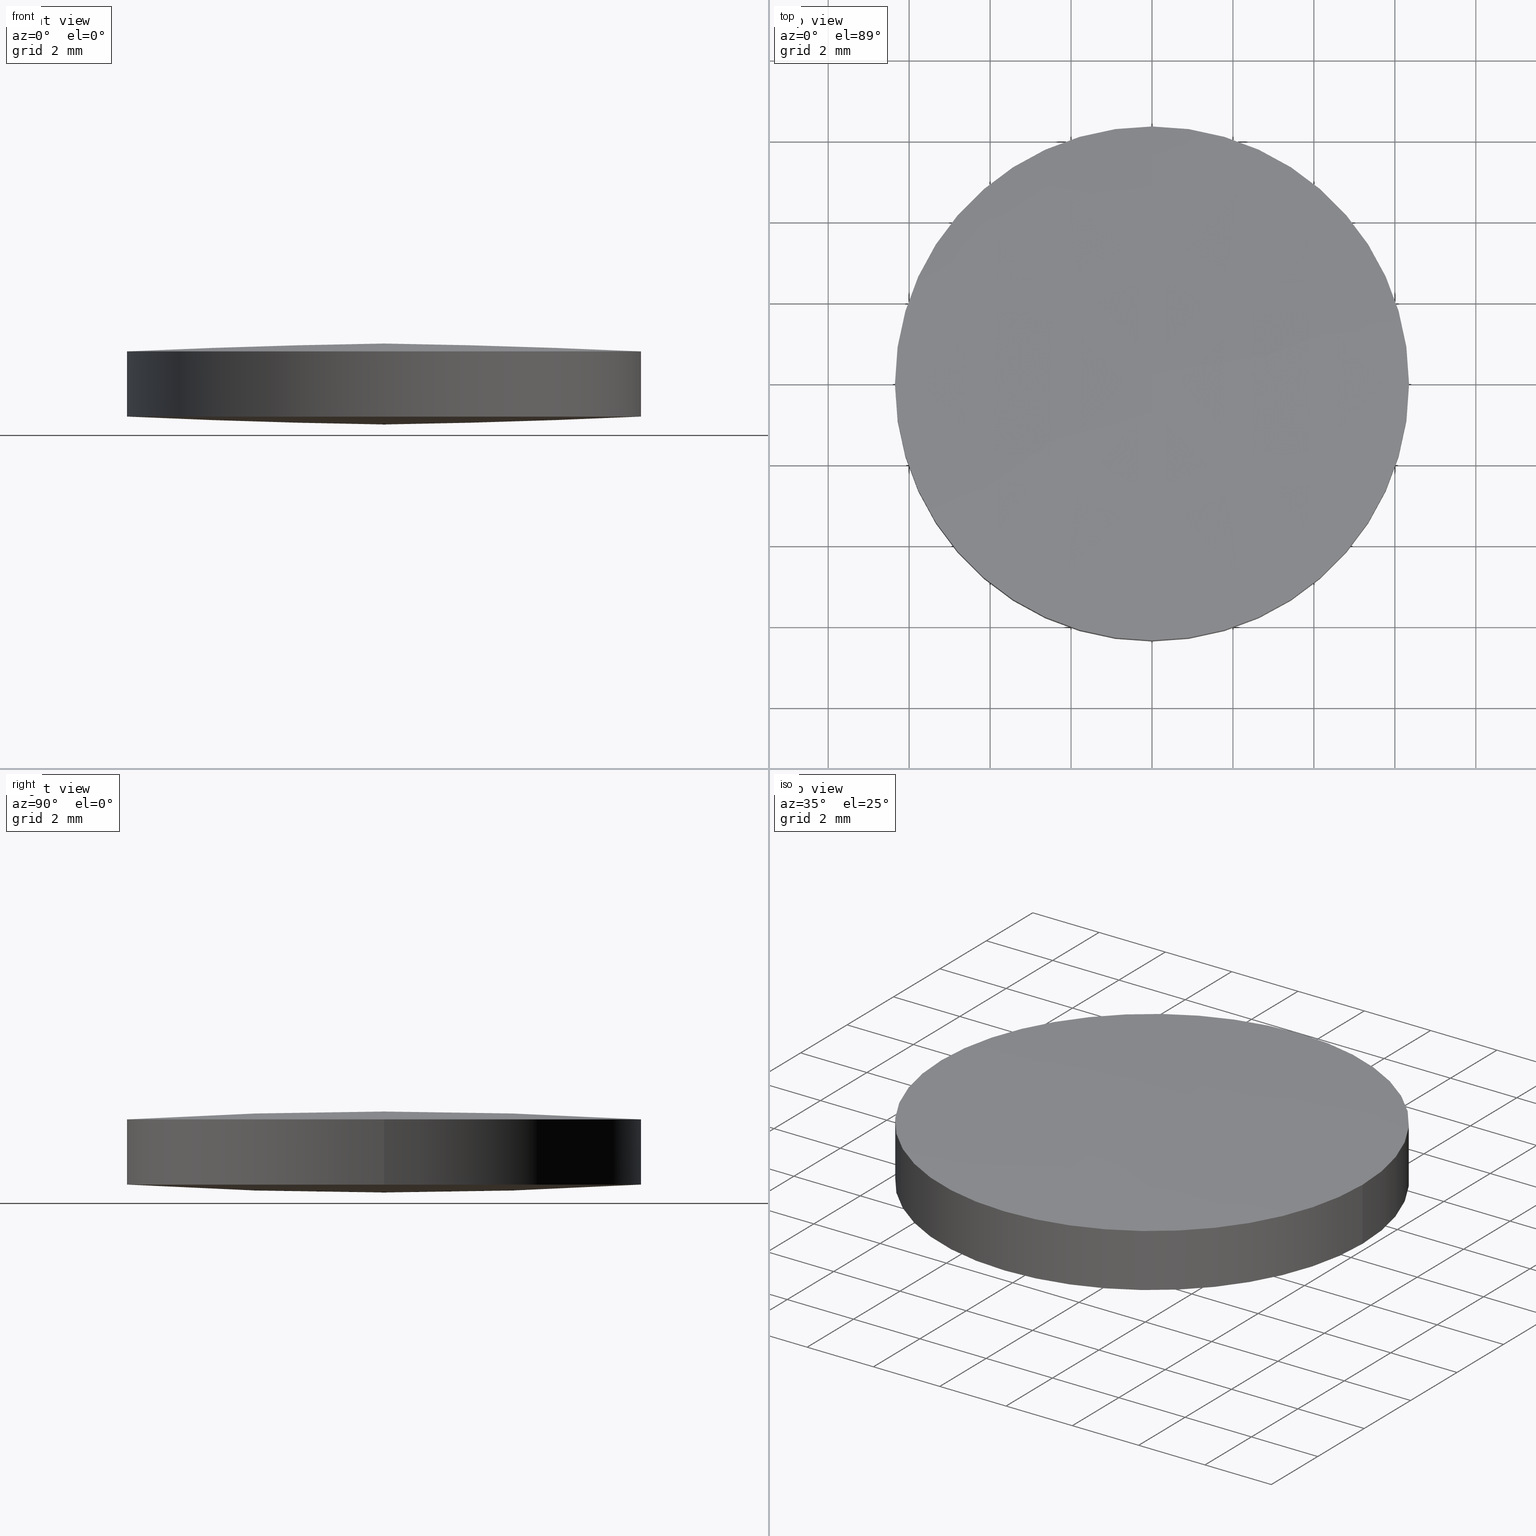
[diagram: canonical four-view strip — front | top / right | iso, engineering-drawing reading convention]
A machine part, canonical four-view strip (front | top / right | iso — engineering-drawing reading convention). The complete STEP part file that produces these views, byte-faithful:
ISO-10303-21;
HEADER;
FILE_DESCRIPTION (( 'STEP AP203' ),
    '1' );
FILE_NAME ('111-0124E BK7 bi-cx 12.7 F100.STEP',
    '2019-01-09T08:02:22',
    ( '' ),
    ( '' ),
    'SwSTEP 2.0',
    'SolidWorks 2017',
    '' );
FILE_SCHEMA (( 'CONFIG_CONTROL_DESIGN' ));
ENDSEC;

DATA;
#1 = AXIS2_PLACEMENT_3D ( 'NONE', #247, #229, #138 ) ;
#2 = CARTESIAN_POINT ( 'NONE',  ( 7.105427357601000300E-015, 7.105427357601000300E-015, 103.4000000000000100 ) ) ;
#3 = DIRECTION ( 'NONE',  ( -1.000000000000000000, 7.982089632700459600E-032, 2.840290826249820100E-016 ) ) ;
#4 = EDGE_CURVE ( 'NONE', #161, #175, #172, .T. ) ;
#5 = DIRECTION ( 'NONE',  ( 1.000000000000000000, 0.0000000000000000000, 0.0000000000000000000 ) ) ;
#6 = CARTESIAN_POINT ( 'NONE',  ( -2.220640865946257500E-014, -6.426102327413736300, 0.1998778640373566300 ) ) ;
#7 = AXIS2_PLACEMENT_3D ( 'NONE', #273, #230, #5 ) ;
#8 = CARTESIAN_POINT ( 'NONE',  ( -4.263824758279389100, 2.144798117303475600, -0.0008099461018445440600 ) ) ;
#9 = CARTESIAN_POINT ( 'NONE',  ( -2.132421672001572500, 2.144798117303475600, -0.06671192655137170300 ) ) ;
#10 = CALENDAR_DATE ( 2019, 9, 1 ) ;
#11 = MANIFOLD_SOLID_BREP ( 'Imported1', #167 ) ;
#12 = ORIENTED_EDGE ( 'NONE', *, *, #87, .F. ) ;
#13 = CARTESIAN_POINT ( 'NONE',  ( 2.228212791312067500E-014, 2.144798117303475600, 2.066711926551370900 ) ) ;
#14 = PRODUCT_DEFINITION_FORMATION_WITH_SPECIFIED_SOURCE ( 'ANY', '', #52, .NOT_KNOWN. ) ;
#15 = DIRECTION ( 'NONE',  ( 1.000000000000000000, 8.881784197001252300E-016, 0.0000000000000000000 ) ) ;
#16 = MECHANICAL_CONTEXT ( 'NONE', #53, 'mechanical' ) ;
#17 = EDGE_CURVE ( 'NONE', #152, #101, #275, .T. ) ;
#18 = DIRECTION ( 'NONE',  ( -0.0000000000000000000, -0.0000000000000000000, -1.000000000000000000 ) ) ;
#19 = UNCERTAINTY_MEASURE_WITH_UNIT (LENGTH_MEASURE( 1.000000000000000100E-005 ), #137, 'distance_accuracy_value', 'NONE');
#20 = CARTESIAN_POINT ( 'NONE',  ( -2.228212791312067500E-014, 2.144798117303475600, -0.06671192655136991300 ) ) ;
#21 = CC_DESIGN_PERSON_AND_ORGANIZATION_ASSIGNMENT ( #85, #181, ( #279 ) ) ;
#22 = CARTESIAN_POINT ( 'NONE',  ( 6.392173060473973900, 2.144798117303475600, 0.1309310565021202200 ) ) ;
#23 = CARTESIAN_POINT ( 'NONE',  ( 4.770489558936219500E-014, 2.144798117303475600, 2.066711926551373600 ) ) ;
#24 = ORIENTED_EDGE ( 'NONE', *, *, #239, .F. ) ;
#25 = DIRECTION ( 'NONE',  ( -0.0000000000000000000, -0.0000000000000000000, -1.000000000000000000 ) ) ;
#26 = DIRECTION ( 'NONE',  ( -0.0000000000000000000, -0.0000000000000000000, -1.000000000000000000 ) ) ;
#27 = CARTESIAN_POINT ( 'NONE',  ( -6.349999999999999600, 1.998896044546239400E-015, 0.1951672643184800000 ) ) ;
#28 = ORIENTED_EDGE ( 'NONE', *, *, #228, .T. ) ;
#29 = CARTESIAN_POINT ( 'NONE',  ( 2.220640865946257500E-014, -6.426102327413736300, 1.800122135962645100 ) ) ;
#30 = PRODUCT_DEFINITION ( 'UNKNOWN', '', #14, #108 ) ;
#31 = PERSON_AND_ORGANIZATION ( #32, #58 ) ;
#32 = PERSON ( 'UNSPECIFIED', 'UNSPECIFIED', 'UNSPECIFIED', ('UNSPECIFIED'), ('UNSPECIFIED'), ('UNSPECIFIED') ) ;
#33 = CARTESIAN_POINT ( 'NONE',  ( -4.252838692053341400, 6.426102327413745200, 0.2656100430614600200 ) ) ;
#34 = EDGE_CURVE ( 'NONE', #175, #208, #154, .T. ) ;
#35 = CIRCLE ( 'NONE', #198, 6.349999999999999600 ) ;
#36 = ORIENTED_EDGE ( 'NONE', *, *, #4, .T. ) ;
#37 = LOCAL_TIME ( 10, 2, 22.00000000000000000, #264 ) ;
#38 = CC_DESIGN_PERSON_AND_ORGANIZATION_ASSIGNMENT ( #31, #256, ( #30 ) ) ;
#39 = CIRCLE ( 'NONE', #143, 6.349999999999999600 ) ;
#40 = APPROVAL_PERSON_ORGANIZATION ( #99, #250, #289 ) ;
#41 = CARTESIAN_POINT ( 'NONE',  ( 2.498001805406600200E-016, 1.221245327087670000E-015, 1.804832735681519900 ) ) ;
#42 = ADVANCED_BREP_SHAPE_REPRESENTATION ( '111-0124E BK7 bi-cx 12.7 F100', ( #11, #225 ), #234 ) ;
#43 = ORIENTED_EDGE ( 'NONE', *, *, #4, .F. ) ;
#44 = DIRECTION ( 'NONE',  ( -0.0000000000000000000, -0.0000000000000000000, -1.000000000000000000 ) ) ;
#45 = EDGE_CURVE ( 'NONE', #133, #152, #98, .T. ) ;
#46 = ORIENTED_EDGE ( 'NONE', *, *, #17, .F. ) ;
#47 = PERSON_AND_ORGANIZATION ( #32, #58 ) ;
#48 = CARTESIAN_POINT ( 'NONE',  ( 2.498001805406600200E-016, 1.221245327087670000E-015, 1.804832735681519900 ) ) ;
#49 = APPROVAL_ROLE ( '' ) ;
#50 = AXIS2_PLACEMENT_3D ( 'NONE', #92, #116, #15 ) ;
#51 = ORIENTED_EDGE ( 'NONE', *, *, #83, .F. ) ;
#52 = PRODUCT ( '111-0124E BK7 bi-cx 12.7 F100', '111-0124E BK7 bi-cx 12.7 F100', '', ( #16 ) ) ;
#53 = APPLICATION_CONTEXT ( 'configuration controlled 3d designs of mechanical parts and assemblies' ) ;
#54 = CARTESIAN_POINT ( 'NONE',  ( 4.263824758279389100, -2.144798117303465400, 2.000809946101832700 ) ) ;
#55 = CC_DESIGN_APPROVAL ( #148, ( #279 ) ) ;
#56 = CARTESIAN_POINT ( 'NONE',  ( 2.220774660677933400E-014, -6.350000000000010300, 1.804832735681521000 ) ) ;
#57 = DIRECTION ( 'NONE',  ( 0.0000000000000000000, -1.000000000000000000, 2.684291645612080600E-016 ) ) ;
#58 = ORGANIZATION ( 'UNSPECIFIED', 'UNSPECIFIED', '' ) ;
#59 = CARTESIAN_POINT ( 'NONE',  ( 4.770489558936219500E-014, -6.426102327413736300, 1.800122135962647800 ) ) ;
#60 = CALENDAR_DATE ( 2019, 9, 1 ) ;
#61 = CARTESIAN_POINT ( 'NONE',  ( 2.498001805406600200E-016, 1.221245327087670000E-015, 0.1951672643184800000 ) ) ;
#62 = CARTESIAN_POINT ( 'NONE',  ( -2.132421672001572100, -2.144798117303465400, -0.06671192655135792200 ) ) ;
#63 = AXIS2_PLACEMENT_3D ( 'NONE', #156, #18, #158 ) ;
#64 = ORIENTED_EDGE ( 'NONE', *, *, #17, .T. ) ;
#65 = DATE_AND_TIME ( #202, #214 ) ;
#66 = VERTEX_POINT ( 'NONE', #96 ) ;
#67 = CARTESIAN_POINT ( 'NONE',  ( 2.132421672001516100, -2.144798117303465400, -0.06671192655135674300 ) ) ;
#68 = ADVANCED_FACE ( 'NONE', ( #191 ), #227, .T. ) ;
#69 = EDGE_CURVE ( 'NONE', #208, #161, #236, .T. ) ;
#70 = ORIENTED_EDGE ( 'NONE', *, *, #94, .F. ) ;
#71 = CIRCLE ( 'NONE', #1, 6.349999999999999600 ) ;
#72 = CARTESIAN_POINT ( 'NONE',  ( 2.132421672001572500, 2.144798117303475600, 2.066711926551373100 ) ) ;
#73 = ORIENTED_EDGE ( 'NONE', *, *, #69, .F. ) ;
#74 = COORDINATED_UNIVERSAL_TIME_OFFSET ( 2, 0, .AHEAD. ) ;
#75 = CARTESIAN_POINT ( 'NONE',  ( -2.220774660677933400E-014, 6.350000000000019200, 0.1951672643184799200 ) ) ;
#76 = DIRECTION ( 'NONE',  ( 1.000000000000000000, 0.0000000000000000000, 0.0000000000000000000 ) ) ;
#77 = DIRECTION ( 'NONE',  ( 0.0000000000000000000, 0.0000000000000000000, 1.000000000000000000 ) ) ;
#78 = CARTESIAN_POINT ( 'NONE',  ( 6.349999999999999600, 1.221245327087670000E-015, 1.804832735681519900 ) ) ;
#79 = CIRCLE ( 'NONE', #184, 6.349999999999999600 ) ;
#80 = DIRECTION ( 'NONE',  ( 1.000000000000000000, 0.0000000000000000000, 0.0000000000000000000 ) ) ;
#81 = VERTEX_POINT ( 'NONE', #267 ) ;
#82 = ORIENTED_EDGE ( 'NONE', *, *, #265, .T. ) ;
#83 = EDGE_CURVE ( 'NONE', #66, #175, #39, .T. ) ;
#84 = ADVANCED_FACE ( 'NONE', ( #174 ), #112, .T. ) ;
#85 = PERSON_AND_ORGANIZATION ( #32, #58 ) ;
#86 =( NAMED_UNIT ( * ) SI_UNIT ( $, .STERADIAN. ) SOLID_ANGLE_UNIT ( ) );
#87 = EDGE_CURVE ( 'NONE', #133, #101, #151, .T. ) ;
#88 = CARTESIAN_POINT ( 'NONE',  ( 2.228212791312067800E-014, -2.144798117303464900, 2.066711926551358000 ) ) ;
#89 = APPROVAL_STATUS ( 'not_yet_approved' ) ;
#90 = CARTESIAN_POINT ( 'NONE',  ( -4.252838692053300600, -6.426102327413735400, 1.734389956938523900 ) ) ;
#91 = EDGE_LOOP ( 'NONE', ( #46, #82, #123, #240, #70, #219 ) ) ;
#92 = CARTESIAN_POINT ( 'NONE',  ( 2.498001805406600200E-016, 1.221245327087670000E-015, 0.1951672643184800000 ) ) ;
#93 =( BOUNDED_SURFACE ( )  B_SPLINE_SURFACE ( 3, 3, ( 
 ( #293, #263, #292, #164 ),
 ( #215, #171, #62, #122 ),
 ( #271, #8, #9, #100 ),
 ( #254, #33, #217, #102 ) ),
 .UNSPECIFIED., .F., .F., .F. ) 
 B_SPLINE_SURFACE_WITH_KNOTS ( ( 4, 4 ),
 ( 4, 4 ),
 ( 0.0000000000000000000, 1.000000000000000000 ),
 ( 0.0000000000000000000, 1.000000000000000000 ),
 .UNSPECIFIED. ) 
 GEOMETRIC_REPRESENTATION_ITEM ( )  RATIONAL_B_SPLINE_SURFACE ( (
 ( 1.000000000000000000, 0.9996815558770323400, 0.9996815558770323400, 1.000000000000000000),
 ( 0.9987112968147171500, 0.9983932630717050600, 0.9983932630717050600, 0.9987112968147171500),
 ( 0.9987112968147171500, 0.9983932630717050600, 0.9983932630717050600, 0.9987112968147171500),
 ( 1.000000000000000000, 0.9996815558770323400, 0.9996815558770323400, 1.000000000000000000) ) ) 
 REPRESENTATION_ITEM ( '' )  SURFACE ( )  );
#94 = EDGE_CURVE ( 'NONE', #81, #208, #206, .T. ) ;
#95 = DIRECTION ( 'NONE',  ( 1.000000000000000000, 0.0000000000000000000, 0.0000000000000000000 ) ) ;
#96 = CARTESIAN_POINT ( 'NONE',  ( -6.349999999999999600, 1.998896044546239400E-015, 1.804832735681519900 ) ) ;
#97 = CC_DESIGN_SECURITY_CLASSIFICATION ( #279, ( #14 ) ) ;
#98 = CIRCLE ( 'NONE', #50, 6.349999999999999600 ) ;
#99 = PERSON_AND_ORGANIZATION ( #32, #58 ) ;
#100 = CARTESIAN_POINT ( 'NONE',  ( -4.770489558936219500E-014, 2.144798117303475600, -0.06671192655137282700 ) ) ;
#101 = VERTEX_POINT ( 'NONE', #75 ) ;
#102 = CARTESIAN_POINT ( 'NONE',  ( -4.683753385137379200E-014, 6.426102327413747000, 0.1998778640373398700 ) ) ;
#103 = LINE ( 'NONE', #226, #147 ) ;
#104 = CC_DESIGN_DATE_AND_TIME_ASSIGNMENT ( #235, #223, ( #279 ) ) ;
#105 = CYLINDRICAL_SURFACE ( 'NONE', #168, 6.349999999999999600 ) ;
#106 = ORIENTED_EDGE ( 'NONE', *, *, #69, .T. ) ;
#107 = APPROVAL_DATE_TIME ( #195, #148 ) ;
#108 = DESIGN_CONTEXT ( 'detailed design', #221, 'design' ) ;
#109 = PERSON_AND_ORGANIZATION ( #32, #58 ) ;
#110 = ORIENTED_EDGE ( 'NONE', *, *, #94, .T. ) ;
#111 = AXIS2_PLACEMENT_3D ( 'NONE', #2, #166, #269 ) ;
#112 =( BOUNDED_SURFACE ( )  B_SPLINE_SURFACE ( 3, 3, ( 
 ( #291, #160, #266, #59 ),
 ( #139, #54, #252, #213 ),
 ( #210, #189, #72, #23 ),
 ( #211, #248, #207, #141 ) ),
 .UNSPECIFIED., .F., .F., .F. ) 
 B_SPLINE_SURFACE_WITH_KNOTS ( ( 4, 4 ),
 ( 4, 4 ),
 ( 0.0000000000000000000, 1.000000000000000000 ),
 ( 0.0000000000000000000, 1.000000000000000000 ),
 .UNSPECIFIED. ) 
 GEOMETRIC_REPRESENTATION_ITEM ( )  RATIONAL_B_SPLINE_SURFACE ( (
 ( 1.000000000000000000, 0.9996815558770323400, 0.9996815558770323400, 1.000000000000000000),
 ( 0.9987112968147171500, 0.9983932630717050600, 0.9983932630717050600, 0.9987112968147171500),
 ( 0.9987112968147171500, 0.9983932630717050600, 0.9983932630717050600, 0.9987112968147171500),
 ( 1.000000000000000000, 0.9996815558770323400, 0.9996815558770323400, 1.000000000000000000) ) ) 
 REPRESENTATION_ITEM ( '' )  SURFACE ( )  );
#113 = PRODUCT_RELATED_PRODUCT_CATEGORY ( 'detail', '', ( #52 ) ) ;
#114 = SHAPE_DEFINITION_REPRESENTATION ( #140, #42 ) ;
#115 = CARTESIAN_POINT ( 'NONE',  ( 2.126927326657003900, 6.426102327413745200, 0.1998778640373421700 ) ) ;
#116 = DIRECTION ( 'NONE',  ( -0.0000000000000000000, -0.0000000000000000000, -1.000000000000000000 ) ) ;
#117 = ORIENTED_EDGE ( 'NONE', *, *, #124, .T. ) ;
#118 = APPROVAL_PERSON_ORGANIZATION ( #47, #238, #260 ) ;
#119 = CARTESIAN_POINT ( 'NONE',  ( 6.392173060473973000, -2.144798117303464900, 0.1309310565021339400 ) ) ;
#120 = DIRECTION ( 'NONE',  ( -0.0000000000000000000, -0.0000000000000000000, -1.000000000000000000 ) ) ;
#121 = CC_DESIGN_PERSON_AND_ORGANIZATION_ASSIGNMENT ( #109, #205, ( #52 ) ) ;
#122 = CARTESIAN_POINT ( 'NONE',  ( -4.770489558936219500E-014, -2.144798117303464900, -0.06671192655135904600 ) ) ;
#123 = ORIENTED_EDGE ( 'NONE', *, *, #83, .T. ) ;
#124 = EDGE_CURVE ( 'NONE', #101, #81, #71, .T. ) ;
#125 = DIRECTION ( 'NONE',  ( -0.0000000000000000000, -0.0000000000000000000, -1.000000000000000000 ) ) ;
#126 = VECTOR ( 'NONE', #188, 1000.000000000000000 ) ;
#127 = CARTESIAN_POINT ( 'NONE',  ( 6.375703144248083400, -6.426102327413736300, 0.3970116050314203000 ) ) ;
#128 = EDGE_LOOP ( 'NONE', ( #24, #36, #51 ) ) ;
#129 = CC_DESIGN_APPROVAL ( #250, ( #30 ) ) ;
#130 = PERSON_AND_ORGANIZATION_ROLE ( 'creator' ) ;
#131 = CARTESIAN_POINT ( 'NONE',  ( -2.220640865946257500E-014, 6.426102327413747000, 0.1998778640373427600 ) ) ;
#132 = CARTESIAN_POINT ( 'NONE',  ( -4.263824758279350900, 2.144798117303475600, 2.000809946101842000 ) ) ;
#133 = VERTEX_POINT ( 'NONE', #163 ) ;
#134 = CC_DESIGN_PERSON_AND_ORGANIZATION_ASSIGNMENT ( #280, #130, ( #14 ) ) ;
#135 = CALENDAR_DATE ( 2019, 9, 1 ) ;
#136 = CARTESIAN_POINT ( 'NONE',  ( 6.349999999999999600, 1.221245327087670000E-015, 0.1951672643184800000 ) ) ;
#137 =( LENGTH_UNIT ( ) NAMED_UNIT ( * ) SI_UNIT ( .MILLI., .METRE. ) );
#138 = DIRECTION ( 'NONE',  ( 1.000000000000000000, 0.0000000000000000000, 0.0000000000000000000 ) ) ;
#139 = CARTESIAN_POINT ( 'NONE',  ( 6.392173060473999700, -2.144798117303464900, 1.869068943497871600 ) ) ;
#140 = PRODUCT_DEFINITION_SHAPE ( 'NONE', 'NONE',  #30 ) ;
#141 = CARTESIAN_POINT ( 'NONE',  ( 4.770489558936219500E-014, 6.426102327413747000, 1.800122135962661600 ) ) ;
#142 = DATE_AND_TIME ( #135, #192 ) ;
#143 = AXIS2_PLACEMENT_3D ( 'NONE', #48, #25, #95 ) ;
#144 = CARTESIAN_POINT ( 'NONE',  ( 2.498001805406600200E-016, 1.221245327087670000E-015, 0.1951672643184800000 ) ) ;
#145 = EDGE_LOOP ( 'NONE', ( #28, #268, #117 ) ) ;
#146 = PERSON_AND_ORGANIZATION ( #32, #58 ) ;
#147 = VECTOR ( 'NONE', #224, 1000.000000000000000 ) ;
#148 = APPROVAL ( #89, 'UNSPECIFIED' ) ;
#149 = ORIENTED_EDGE ( 'NONE', *, *, #45, .F. ) ;
#150 = APPROVAL_DATE_TIME ( #65, #250 ) ;
#151 = CIRCLE ( 'NONE', #111, 103.4000000000000100 ) ;
#152 = VERTEX_POINT ( 'NONE', #27 ) ;
#153 = ADVANCED_FACE ( 'NONE', ( #294 ), #93, .T. ) ;
#154 = CIRCLE ( 'NONE', #281, 6.349999999999999600 ) ;
#155 = DIRECTION ( 'NONE',  ( 1.000000000000000000, 0.0000000000000000000, 0.0000000000000000000 ) ) ;
#156 = CARTESIAN_POINT ( 'NONE',  ( 2.498001805406600200E-016, 1.221245327087670000E-015, 1.804832735681519900 ) ) ;
#157 =( NAMED_UNIT ( * ) PLANE_ANGLE_UNIT ( ) SI_UNIT ( $, .RADIAN. ) );
#158 = DIRECTION ( 'NONE',  ( 1.000000000000000000, 0.0000000000000000000, 0.0000000000000000000 ) ) ;
#159 = APPROVAL_STATUS ( 'not_yet_approved' ) ;
#160 = CARTESIAN_POINT ( 'NONE',  ( 4.252838692053340500, -6.426102327413735400, 1.734389956938527500 ) ) ;
#161 = VERTEX_POINT ( 'NONE', #56 ) ;
#162 = CARTESIAN_POINT ( 'NONE',  ( 4.263824758279350000, 2.144798117303475600, -0.0008099461018408037800 ) ) ;
#163 = CARTESIAN_POINT ( 'NONE',  ( -2.220774660677933400E-014, -6.350000000000010300, 0.1951672643184799200 ) ) ;
#164 = CARTESIAN_POINT ( 'NONE',  ( -4.683753385137379200E-014, -6.426102327413736300, 0.1998778640373537500 ) ) ;
#165 = CC_DESIGN_APPROVAL ( #238, ( #14 ) ) ;
#166 = DIRECTION ( 'NONE',  ( 1.000000000000000000, 7.982089632700459600E-032, -2.840290826249820100E-016 ) ) ;
#167 = CLOSED_SHELL ( 'NONE', ( #255, #68, #193, #153, #180, #84 ) ) ;
#168 = AXIS2_PLACEMENT_3D ( 'NONE', #144, #77, #170 ) ;
#169 = CARTESIAN_POINT ( 'NONE',  ( 2.126927326657003500, -6.426102327413735400, 0.1998778640373560500 ) ) ;
#170 = DIRECTION ( 'NONE',  ( 1.000000000000000000, 0.0000000000000000000, 0.0000000000000000000 ) ) ;
#171 = CARTESIAN_POINT ( 'NONE',  ( -4.263824758279389100, -2.144798117303465400, -0.0008099461018308020100 ) ) ;
#172 = CIRCLE ( 'NONE', #290, 103.4000000000000100 ) ;
#173 = CC_DESIGN_PERSON_AND_ORGANIZATION_ASSIGNMENT ( #146, #186, ( #14 ) ) ;
#174 = FACE_OUTER_BOUND ( 'NONE', #222, .T. ) ;
#175 = VERTEX_POINT ( 'NONE', #231 ) ;
#176 =( BOUNDED_SURFACE ( )  B_SPLINE_SURFACE ( 3, 3, ( 
 ( #6, #169, #276, #127 ),
 ( #277, #67, #187, #119 ),
 ( #20, #203, #162, #22 ),
 ( #131, #115, #285, #261 ) ),
 .UNSPECIFIED., .F., .F., .F. ) 
 B_SPLINE_SURFACE_WITH_KNOTS ( ( 4, 4 ),
 ( 4, 4 ),
 ( 0.0000000000000000000, 1.000000000000000000 ),
 ( 0.0000000000000000000, 1.000000000000000000 ),
 .UNSPECIFIED. ) 
 GEOMETRIC_REPRESENTATION_ITEM ( )  RATIONAL_B_SPLINE_SURFACE ( (
 ( 1.000000000000000000, 0.9996815558770323400, 0.9996815558770323400, 1.000000000000000000),
 ( 0.9987112968147171500, 0.9983932630717050600, 0.9983932630717050600, 0.9987112968147171500),
 ( 0.9987112968147171500, 0.9983932630717050600, 0.9983932630717050600, 0.9987112968147171500),
 ( 1.000000000000000000, 0.9996815558770323400, 0.9996815558770323400, 1.000000000000000000) ) ) 
 REPRESENTATION_ITEM ( '' )  SURFACE ( )  );
#177 = FACE_OUTER_BOUND ( 'NONE', #91, .T. ) ;
#178 = PERSON_AND_ORGANIZATION ( #32, #58 ) ;
#179 = CARTESIAN_POINT ( 'NONE',  ( -6.392173060473974800, 2.144798117303475600, 1.869068943497881800 ) ) ;
#180 = ADVANCED_FACE ( 'NONE', ( #232 ), #233, .T. ) ;
#181 = PERSON_AND_ORGANIZATION_ROLE ( 'classification_officer' ) ;
#182 = CARTESIAN_POINT ( 'NONE',  ( 2.220640865946257500E-014, 6.426102327413747000, 1.800122135962658900 ) ) ;
#183 = ORIENTED_EDGE ( 'NONE', *, *, #228, .F. ) ;
#184 = AXIS2_PLACEMENT_3D ( 'NONE', #61, #125, #270 ) ;
#185 = CALENDAR_DATE ( 2019, 9, 1 ) ;
#186 = PERSON_AND_ORGANIZATION_ROLE ( 'design_supplier' ) ;
#187 = CARTESIAN_POINT ( 'NONE',  ( 4.263824758279349100, -2.144798117303465400, -0.0008099461018270615100 ) ) ;
#188 = DIRECTION ( 'NONE',  ( 0.0000000000000000000, 0.0000000000000000000, 1.000000000000000000 ) ) ;
#189 = CARTESIAN_POINT ( 'NONE',  ( 4.263824758279389100, 2.144798117303475600, 2.000809946101845600 ) ) ;
#190 = DIRECTION ( 'NONE',  ( 1.000000000000000000, 0.0000000000000000000, 0.0000000000000000000 ) ) ;
#191 = FACE_OUTER_BOUND ( 'NONE', #128, .T. ) ;
#192 = LOCAL_TIME ( 10, 2, 22.00000000000000000, #253 ) ;
#193 = ADVANCED_FACE ( 'NONE', ( #177 ), #105, .T. ) ;
#194 = FACE_OUTER_BOUND ( 'NONE', #145, .T. ) ;
#195 = DATE_AND_TIME ( #185, #37 ) ;
#196 = LOCAL_TIME ( 10, 2, 22.00000000000000000, #74 ) ;
#197 = APPROVAL_STATUS ( 'not_yet_approved' ) ;
#198 = AXIS2_PLACEMENT_3D ( 'NONE', #41, #44, #80 ) ;
#199 = ORIENTED_EDGE ( 'NONE', *, *, #45, .T. ) ;
#200 = APPLICATION_PROTOCOL_DEFINITION ( 'international standard', 'config_control_design', 1994, #53 ) ;
#201 = CARTESIAN_POINT ( 'NONE',  ( -4.263824758279350900, -2.144798117303465400, 2.000809946101829200 ) ) ;
#202 = CALENDAR_DATE ( 2019, 9, 1 ) ;
#203 = CARTESIAN_POINT ( 'NONE',  ( 2.132421672001516600, 2.144798117303475600, -0.06671192655137053700 ) ) ;
#204 = DATE_TIME_ROLE ( 'creation_date' ) ;
#205 = PERSON_AND_ORGANIZATION_ROLE ( 'design_owner' ) ;
#206 = LINE ( 'NONE', #136, #126 ) ;
#207 = CARTESIAN_POINT ( 'NONE',  ( 2.126927326657059400, 6.426102327413745200, 1.800122135962660700 ) ) ;
#208 = VERTEX_POINT ( 'NONE', #78 ) ;
#209 = COORDINATED_UNIVERSAL_TIME_OFFSET ( 2, 0, .AHEAD. ) ;
#210 = CARTESIAN_POINT ( 'NONE',  ( 6.392173060474000600, 2.144798117303475600, 1.869068943497885300 ) ) ;
#211 = CARTESIAN_POINT ( 'NONE',  ( 6.375703144248110900, 6.426102327413747000, 1.602988394968599000 ) ) ;
#212 = CARTESIAN_POINT ( 'NONE',  ( 2.498001805406600200E-016, 1.221245327087670000E-015, 1.804832735681519900 ) ) ;
#213 = CARTESIAN_POINT ( 'NONE',  ( 4.770489558936219500E-014, -2.144798117303464900, 2.066711926551361200 ) ) ;
#214 = LOCAL_TIME ( 10, 2, 22.00000000000000000, #259 ) ;
#215 = CARTESIAN_POINT ( 'NONE',  ( -6.392173060473999700, -2.144798117303464900, 0.1309310565021301100 ) ) ;
#216 = DATE_AND_TIME ( #60, #220 ) ;
#217 = CARTESIAN_POINT ( 'NONE',  ( -2.126927326657058500, 6.426102327413745200, 0.1998778640373409800 ) ) ;
#218 = AXIS2_PLACEMENT_3D ( 'NONE', #295, #26, #76 ) ;
#219 = ORIENTED_EDGE ( 'NONE', *, *, #124, .F. ) ;
#220 = LOCAL_TIME ( 10, 2, 22.00000000000000000, #209 ) ;
#221 = APPLICATION_CONTEXT ( 'configuration controlled 3d designs of mechanical parts and assemblies' ) ;
#222 = EDGE_LOOP ( 'NONE', ( #43, #73, #288 ) ) ;
#223 = DATE_TIME_ROLE ( 'classification_date' ) ;
#224 = DIRECTION ( 'NONE',  ( 0.0000000000000000000, 0.0000000000000000000, 1.000000000000000000 ) ) ;
#225 = AXIS2_PLACEMENT_3D ( 'NONE', #258, #283, #155 ) ;
#226 = CARTESIAN_POINT ( 'NONE',  ( -6.349999999999999600, 1.998896044546239400E-015, 0.1951672643184800000 ) ) ;
#227 =( BOUNDED_SURFACE ( )  B_SPLINE_SURFACE ( 3, 3, ( 
 ( #29, #257, #90, #241 ),
 ( #88, #243, #201, #245 ),
 ( #13, #286, #132, #179 ),
 ( #182, #284, #262, #242 ) ),
 .UNSPECIFIED., .F., .F., .F. ) 
 B_SPLINE_SURFACE_WITH_KNOTS ( ( 4, 4 ),
 ( 4, 4 ),
 ( 0.0000000000000000000, 1.000000000000000000 ),
 ( 0.0000000000000000000, 1.000000000000000000 ),
 .UNSPECIFIED. ) 
 GEOMETRIC_REPRESENTATION_ITEM ( )  RATIONAL_B_SPLINE_SURFACE ( (
 ( 1.000000000000000000, 0.9996815558770323400, 0.9996815558770323400, 1.000000000000000000),
 ( 0.9987112968147171500, 0.9983932630717050600, 0.9983932630717050600, 0.9987112968147171500),
 ( 0.9987112968147171500, 0.9983932630717050600, 0.9983932630717050600, 0.9987112968147171500),
 ( 1.000000000000000000, 0.9996815558770323400, 0.9996815558770323400, 1.000000000000000000) ) ) 
 REPRESENTATION_ITEM ( '' )  SURFACE ( )  );
#228 = EDGE_CURVE ( 'NONE', #81, #133, #79, .T. ) ;
#229 = DIRECTION ( 'NONE',  ( -0.0000000000000000000, -0.0000000000000000000, -1.000000000000000000 ) ) ;
#230 = DIRECTION ( 'NONE',  ( 0.0000000000000000000, 0.0000000000000000000, 1.000000000000000000 ) ) ;
#231 = CARTESIAN_POINT ( 'NONE',  ( 2.220774660677933400E-014, 6.350000000000019200, 1.804832735681521000 ) ) ;
#232 = FACE_OUTER_BOUND ( 'NONE', #272, .T. ) ;
#233 = CYLINDRICAL_SURFACE ( 'NONE', #7, 6.349999999999999600 ) ;
#234 =( GEOMETRIC_REPRESENTATION_CONTEXT ( 3 ) GLOBAL_UNCERTAINTY_ASSIGNED_CONTEXT ( ( #19 ) ) GLOBAL_UNIT_ASSIGNED_CONTEXT ( ( #137, #157, #86 ) ) REPRESENTATION_CONTEXT ( 'NONE', 'WORKASPACE' ) );
#235 = DATE_AND_TIME ( #10, #196 ) ;
#236 = CIRCLE ( 'NONE', #63, 6.349999999999999600 ) ;
#237 = EDGE_LOOP ( 'NONE', ( #12, #199, #64 ) ) ;
#238 = APPROVAL ( #159, 'UNSPECIFIED' ) ;
#239 = EDGE_CURVE ( 'NONE', #161, #66, #35, .T. ) ;
#240 = ORIENTED_EDGE ( 'NONE', *, *, #34, .T. ) ;
#241 = CARTESIAN_POINT ( 'NONE',  ( -6.375703144248084300, -6.426102327413736300, 1.602988394968581300 ) ) ;
#242 = CARTESIAN_POINT ( 'NONE',  ( -6.375703144248085200, 6.426102327413747000, 1.602988394968595200 ) ) ;
#243 = CARTESIAN_POINT ( 'NONE',  ( -2.132421672001516100, -2.144798117303465400, 2.066711926551358500 ) ) ;
#244 = APPROVAL_PERSON_ORGANIZATION ( #178, #148, #49 ) ;
#245 = CARTESIAN_POINT ( 'NONE',  ( -6.392173060473973900, -2.144798117303464900, 1.869068943497867600 ) ) ;
#246 = APPLICATION_PROTOCOL_DEFINITION ( 'international standard', 'config_control_design', 1994, #221 ) ;
#247 = CARTESIAN_POINT ( 'NONE',  ( 2.498001805406600200E-016, 1.221245327087670000E-015, 0.1951672643184800000 ) ) ;
#248 = CARTESIAN_POINT ( 'NONE',  ( 4.252838692053341400, 6.426102327413745200, 1.734389956938541700 ) ) ;
#249 = APPROVAL_DATE_TIME ( #216, #238 ) ;
#250 = APPROVAL ( #197, 'UNSPECIFIED' ) ;
#251 = CARTESIAN_POINT ( 'NONE',  ( -7.105427357601000300E-015, 7.105427357601000300E-015, -101.4000000000000100 ) ) ;
#252 = CARTESIAN_POINT ( 'NONE',  ( 2.132421672001572100, -2.144798117303465400, 2.066711926551359800 ) ) ;
#253 = COORDINATED_UNIVERSAL_TIME_OFFSET ( 2, 0, .AHEAD. ) ;
#254 = CARTESIAN_POINT ( 'NONE',  ( -6.375703144248110900, 6.426102327413747000, 0.3970116050314026500 ) ) ;
#255 = ADVANCED_FACE ( 'NONE', ( #194 ), #176, .T. ) ;
#256 = PERSON_AND_ORGANIZATION_ROLE ( 'creator' ) ;
#257 = CARTESIAN_POINT ( 'NONE',  ( -2.126927326657003500, -6.426102327413735400, 1.800122135962645800 ) ) ;
#258 = CARTESIAN_POINT ( 'NONE',  ( 0.0000000000000000000, 0.0000000000000000000, 0.0000000000000000000 ) ) ;
#259 = COORDINATED_UNIVERSAL_TIME_OFFSET ( 2, 0, .AHEAD. ) ;
#260 = APPROVAL_ROLE ( '' ) ;
#261 = CARTESIAN_POINT ( 'NONE',  ( 6.375703144248085200, 6.426102327413747000, 0.3970116050314064200 ) ) ;
#262 = CARTESIAN_POINT ( 'NONE',  ( -4.252838692053300600, 6.426102327413745200, 1.734389956938537700 ) ) ;
#263 = CARTESIAN_POINT ( 'NONE',  ( -4.252838692053340500, -6.426102327413735400, 0.2656100430614739000 ) ) ;
#264 = COORDINATED_UNIVERSAL_TIME_OFFSET ( 2, 0, .AHEAD. ) ;
#265 = EDGE_CURVE ( 'NONE', #152, #66, #103, .T. ) ;
#266 = CARTESIAN_POINT ( 'NONE',  ( 2.126927326657059000, -6.426102327413735400, 1.800122135962646700 ) ) ;
#267 = CARTESIAN_POINT ( 'NONE',  ( 6.349999999999999600, 1.221245327087670000E-015, 0.1951672643184800000 ) ) ;
#268 = ORIENTED_EDGE ( 'NONE', *, *, #87, .T. ) ;
#269 = DIRECTION ( 'NONE',  ( 0.0000000000000000000, -1.000000000000000000, -2.684291645612080600E-016 ) ) ;
#270 = DIRECTION ( 'NONE',  ( 1.000000000000000000, 0.0000000000000000000, 0.0000000000000000000 ) ) ;
#271 = CARTESIAN_POINT ( 'NONE',  ( -6.392173060474000600, 2.144798117303475600, 0.1309310565021164500 ) ) ;
#272 = EDGE_LOOP ( 'NONE', ( #278, #149, #183, #110, #106, #287 ) ) ;
#273 = CARTESIAN_POINT ( 'NONE',  ( 2.498001805406600200E-016, 1.221245327087670000E-015, 0.1951672643184800000 ) ) ;
#274 = CC_DESIGN_DATE_AND_TIME_ASSIGNMENT ( #142, #204, ( #30 ) ) ;
#275 = CIRCLE ( 'NONE', #218, 6.349999999999999600 ) ;
#276 = CARTESIAN_POINT ( 'NONE',  ( 4.252838692053298800, -6.426102327413735400, 0.2656100430614776200 ) ) ;
#277 = CARTESIAN_POINT ( 'NONE',  ( -2.228212791312067800E-014, -2.144798117303464900, -0.06671192655135613200 ) ) ;
#278 = ORIENTED_EDGE ( 'NONE', *, *, #265, .F. ) ;
#279 = SECURITY_CLASSIFICATION ( '', '', #282 ) ;
#280 = PERSON_AND_ORGANIZATION ( #32, #58 ) ;
#281 = AXIS2_PLACEMENT_3D ( 'NONE', #212, #120, #190 ) ;
#282 = SECURITY_CLASSIFICATION_LEVEL ( 'unclassified' ) ;
#283 = DIRECTION ( 'NONE',  ( 0.0000000000000000000, 0.0000000000000000000, 1.000000000000000000 ) ) ;
#284 = CARTESIAN_POINT ( 'NONE',  ( -2.126927326657003900, 6.426102327413745200, 1.800122135962659800 ) ) ;
#285 = CARTESIAN_POINT ( 'NONE',  ( 4.252838692053300600, 6.426102327413745200, 0.2656100430614636900 ) ) ;
#286 = CARTESIAN_POINT ( 'NONE',  ( -2.132421672001516600, 2.144798117303475600, 2.066711926551372300 ) ) ;
#287 = ORIENTED_EDGE ( 'NONE', *, *, #239, .T. ) ;
#288 = ORIENTED_EDGE ( 'NONE', *, *, #34, .F. ) ;
#289 = APPROVAL_ROLE ( '' ) ;
#290 = AXIS2_PLACEMENT_3D ( 'NONE', #251, #3, #57 ) ;
#291 = CARTESIAN_POINT ( 'NONE',  ( 6.375703144248110000, -6.426102327413736300, 1.602988394968585300 ) ) ;
#292 = CARTESIAN_POINT ( 'NONE',  ( -2.126927326657058100, -6.426102327413735400, 0.1998778640373548600 ) ) ;
#293 = CARTESIAN_POINT ( 'NONE',  ( -6.375703144248110000, -6.426102327413736300, 0.3970116050314165300 ) ) ;
#294 = FACE_OUTER_BOUND ( 'NONE', #237, .T. ) ;
#295 = CARTESIAN_POINT ( 'NONE',  ( 2.498001805406600200E-016, 1.221245327087670000E-015, 0.1951672643184800000 ) ) ;
ENDSEC;
END-ISO-10303-21;
